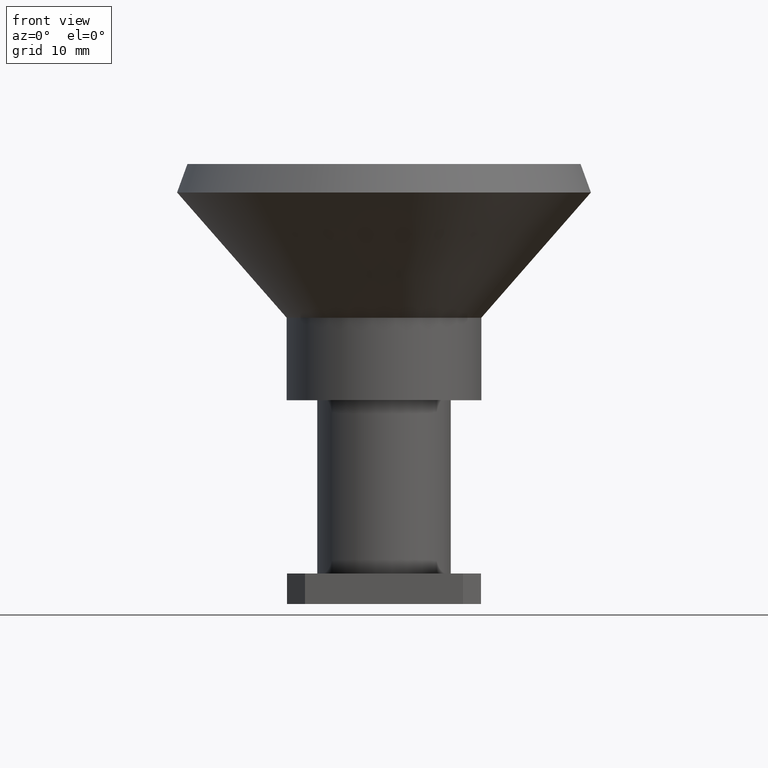
[diagram: clean part render]
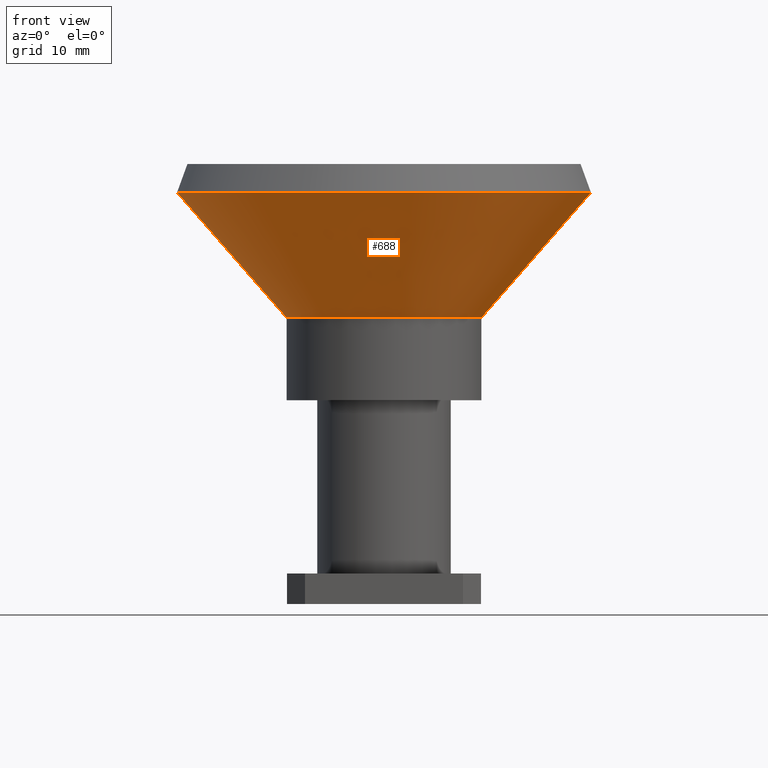
[diagram: same view with one face highlighted and labeled with its STEP entity id]
A machine part, front view. The second image highlights one B-rep face of the part: STEP entity #688.
In plain terms, the highlighted conical surface has half-angle 41.18 deg.
Its self-contained STEP definition (entity closure, byte-faithful):
#19 = DIRECTION ( 'NONE',  ( -0.6584277793867978600, 8.063414724957417900E-017, 0.7526439127049193700 ) ) ;
#23 = FACE_OUTER_BOUND ( 'NONE', #251, .T. ) ;
#24 = EDGE_CURVE ( 'NONE', #992, #83, #313, .T. ) ;
#82 = CARTESIAN_POINT ( 'NONE',  ( 0.7994999999999999900, 0.0000000000000000000, -0.1099002899963156700 ) ) ;
#83 = VERTEX_POINT ( 'NONE', #82 ) ;
#92 = AXIS2_PLACEMENT_3D ( 'NONE', #709, #1043, #1036 ) ;
#137 = DIRECTION ( 'NONE',  ( 1.224646799147353200E-016, 0.0000000000000000000, 1.000000000000000000 ) ) ;
#168 = ORIENTED_EDGE ( 'NONE', *, *, #546, .T. ) ;
#195 = DIRECTION ( 'NONE',  ( 0.6584277793867980800, 0.0000000000000000000, 0.7526439127049191500 ) ) ;
#237 = CARTESIAN_POINT ( 'NONE',  ( 1.948535166980293900E-016, 0.0000000000000000000, -0.1099002899963155600 ) ) ;
#244 = CIRCLE ( 'NONE', #428, 0.3759999999647114500 ) ;
#251 = EDGE_LOOP ( 'NONE', ( #606, #168, #597, #607 ) ) ;
#288 = CONICAL_SURFACE ( 'NONE', #554, 0.7994999999999998800, 0.7187279169351729100 ) ;
#313 = CIRCLE ( 'NONE', #92, 0.7994999999999998800 ) ;
#350 = CARTESIAN_POINT ( 'NONE',  ( 0.3759999999647116200, 0.0000000000000000000, -0.5939999999963158100 ) ) ;
#355 = LINE ( 'NONE', #581, #926 ) ;
#393 = DIRECTION ( 'NONE',  ( 1.000000000000000000, 0.0000000000000000000, -1.281354593651155500E-016 ) ) ;
#428 = AXIS2_PLACEMENT_3D ( 'NONE', #782, #137, #771 ) ;
#480 = VECTOR ( 'NONE', #195, 39.37007874015748100 ) ;
#546 = EDGE_CURVE ( 'NONE', #813, #906, #244, .T. ) ;
#554 = AXIS2_PLACEMENT_3D ( 'NONE', #237, #794, #393 ) ;
#581 = CARTESIAN_POINT ( 'NONE',  ( -0.7994999999999997700, 9.791051159183087500E-017, -0.1099002899963154600 ) ) ;
#597 = ORIENTED_EDGE ( 'NONE', *, *, #900, .T. ) ;
#606 = ORIENTED_EDGE ( 'NONE', *, *, #953, .F. ) ;
#607 = ORIENTED_EDGE ( 'NONE', *, *, #24, .F. ) ;
#637 = CARTESIAN_POINT ( 'NONE',  ( -0.3759999999647113400, 7.197861561772489400E-017, -0.5939999999963155900 ) ) ;
#648 = CARTESIAN_POINT ( 'NONE',  ( 0.7994999999999999900, 0.0000000000000000000, -0.1099002899963156700 ) ) ;
#666 = CARTESIAN_POINT ( 'NONE',  ( -0.7994999999999997700, 9.791051159183087500E-017, -0.1099002899963154600 ) ) ;
#688 = ADVANCED_FACE ( 'NONE', ( #23 ), #288, .T. ) ;
#709 = CARTESIAN_POINT ( 'NONE',  ( 1.948535166980293900E-016, 0.0000000000000000000, -0.1099002899963155600 ) ) ;
#771 = DIRECTION ( 'NONE',  ( 1.000000000000000000, 0.0000000000000000000, -1.816388293830222200E-016 ) ) ;
#782 = CARTESIAN_POINT ( 'NONE',  ( 1.355684006660631900E-016, 0.0000000000000000000, -0.5939999999963157000 ) ) ;
#794 = DIRECTION ( 'NONE',  ( 1.224646799147353200E-016, 0.0000000000000000000, 1.000000000000000000 ) ) ;
#813 = VERTEX_POINT ( 'NONE', #637 ) ;
#900 = EDGE_CURVE ( 'NONE', #906, #83, #940, .T. ) ;
#906 = VERTEX_POINT ( 'NONE', #350 ) ;
#926 = VECTOR ( 'NONE', #19, 39.37007874015748100 ) ;
#940 = LINE ( 'NONE', #648, #480 ) ;
#953 = EDGE_CURVE ( 'NONE', #813, #992, #355, .T. ) ;
#992 = VERTEX_POINT ( 'NONE', #666 ) ;
#1036 = DIRECTION ( 'NONE',  ( 1.000000000000000000, 0.0000000000000000000, -1.281354593651155500E-016 ) ) ;
#1043 = DIRECTION ( 'NONE',  ( 1.224646799147353200E-016, 0.0000000000000000000, 1.000000000000000000 ) ) ;